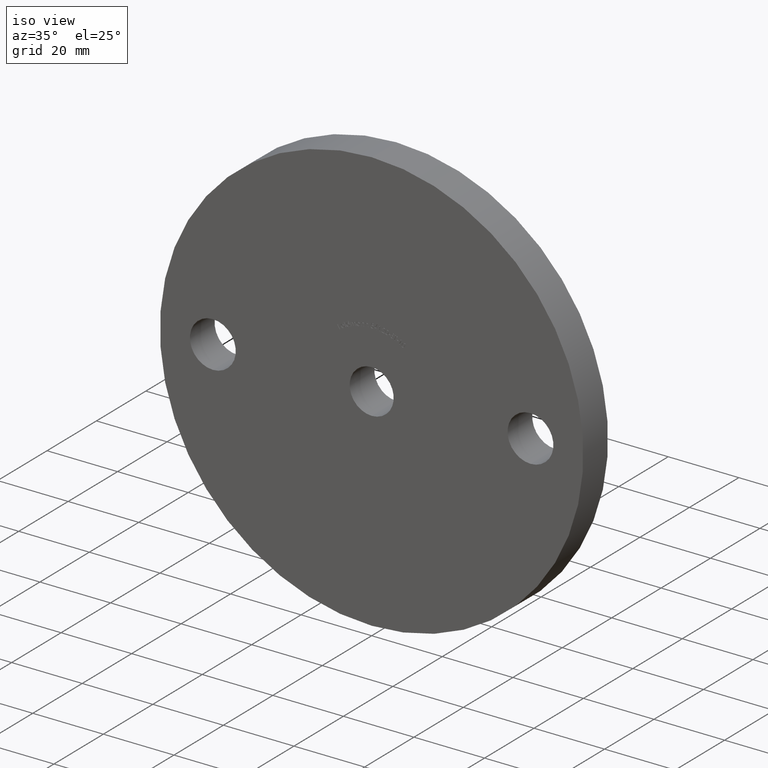
[diagram: clean part render]
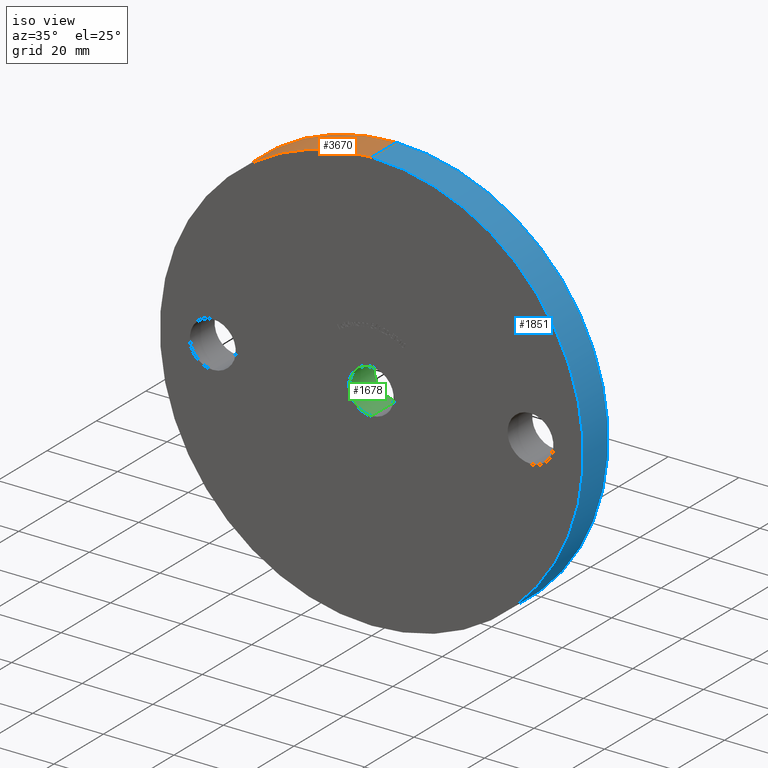
[diagram: same view with three faces highlighted in distinct colors, each labeled with its STEP entity id]
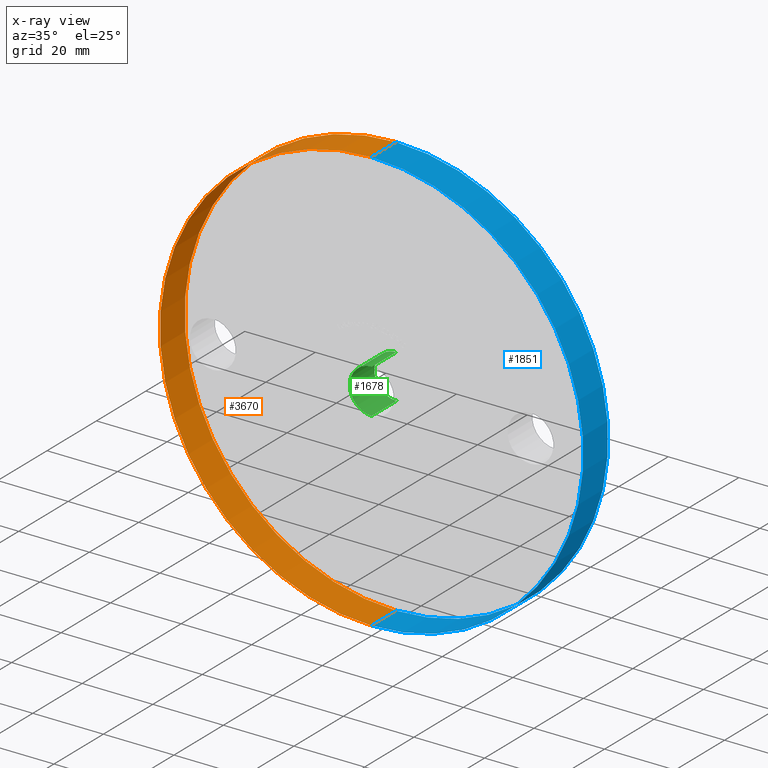
[diagram: x-ray of the same camera — body ghosted, the three highlighted faces saturated]
A machine part, iso view with three faces highlighted in distinct colors.
The next image is the same camera in x-ray (body ghosted, the three faces saturated) — at least one of them is partly hidden behind the body in this view.
Their STEP definitions:

[orange] entity #3670 — the highlighted cylindrical surface (partial cylindrical patch) has radius 60 mm, axis along (-0, -1, -0).
#126 = DIRECTION ( 'NONE',  ( 0.0000000000000000000, 0.0000000000000000000, -1.000000000000000000 ) ) ;
#240 = CARTESIAN_POINT ( 'NONE',  ( 0.0000000000000000000, 10.00000000000000000, -60.00000000000000000 ) ) ;
#1805 = ORIENTED_EDGE ( 'NONE', *, *, #5013, .T. ) ;
#2253 = VERTEX_POINT ( 'NONE', #3773 ) ;
#2984 = AXIS2_PLACEMENT_3D ( 'NONE', #9408, #3586, #10394 ) ;
#3424 = EDGE_CURVE ( 'NONE', #8776, #12142, #10878, .T. ) ;
#3496 = EDGE_CURVE ( 'NONE', #8776, #7247, #4323, .T. ) ;
#3586 = DIRECTION ( 'NONE',  ( 0.0000000000000000000, 1.000000000000000000, 0.0000000000000000000 ) ) ;
#3670 = ADVANCED_FACE ( 'NONE', ( #4309 ), #8278, .T. ) ;
#3773 = CARTESIAN_POINT ( 'NONE',  ( 7.347880794884118400E-015, 0.0000000000000000000, 60.00000000000000000 ) ) ;
#3933 = AXIS2_PLACEMENT_3D ( 'NONE', #9542, #11555, #6768 ) ;
#4059 = DIRECTION ( 'NONE',  ( -0.0000000000000000000, -1.000000000000000000, -0.0000000000000000000 ) ) ;
#4309 = FACE_OUTER_BOUND ( 'NONE', #11694, .T. ) ;
#4323 = CIRCLE ( 'NONE', #3933, 60.00000000000000000 ) ;
#5013 = EDGE_CURVE ( 'NONE', #12142, #2253, #7033, .T. ) ;
#5290 = DIRECTION ( 'NONE',  ( -0.0000000000000000000, -1.000000000000000000, -0.0000000000000000000 ) ) ;
#6247 = CARTESIAN_POINT ( 'NONE',  ( 0.0000000000000000000, 0.0000000000000000000, -60.00000000000000000 ) ) ;
#6731 = DIRECTION ( 'NONE',  ( -0.0000000000000000000, -1.000000000000000000, -0.0000000000000000000 ) ) ;
#6768 = DIRECTION ( 'NONE',  ( 0.0000000000000000000, 0.0000000000000000000, 1.000000000000000000 ) ) ;
#6902 = CARTESIAN_POINT ( 'NONE',  ( 0.0000000000000000000, 10.00000000000000000, 0.0000000000000000000 ) ) ;
#7033 = CIRCLE ( 'NONE', #2984, 60.00000000000000000 ) ;
#7247 = VERTEX_POINT ( 'NONE', #7934 ) ;
#7934 = CARTESIAN_POINT ( 'NONE',  ( 7.347880794884118400E-015, 10.00000000000000000, 60.00000000000000000 ) ) ;
#8278 = CYLINDRICAL_SURFACE ( 'NONE', #10463, 60.00000000000000000 ) ;
#8452 = ORIENTED_EDGE ( 'NONE', *, *, #3496, .F. ) ;
#8776 = VERTEX_POINT ( 'NONE', #9173 ) ;
#8929 = ORIENTED_EDGE ( 'NONE', *, *, #9392, .F. ) ;
#9173 = CARTESIAN_POINT ( 'NONE',  ( 0.0000000000000000000, 10.00000000000000000, -60.00000000000000000 ) ) ;
#9392 = EDGE_CURVE ( 'NONE', #7247, #2253, #11551, .T. ) ;
#9408 = CARTESIAN_POINT ( 'NONE',  ( 0.0000000000000000000, 0.0000000000000000000, 0.0000000000000000000 ) ) ;
#9542 = CARTESIAN_POINT ( 'NONE',  ( 0.0000000000000000000, 10.00000000000000000, 0.0000000000000000000 ) ) ;
#9807 = VECTOR ( 'NONE', #5290, 1000.000000000000000 ) ;
#10366 = ORIENTED_EDGE ( 'NONE', *, *, #3424, .T. ) ;
#10394 = DIRECTION ( 'NONE',  ( 0.0000000000000000000, 0.0000000000000000000, 1.000000000000000000 ) ) ;
#10463 = AXIS2_PLACEMENT_3D ( 'NONE', #6902, #4059, #126 ) ;
#10878 = LINE ( 'NONE', #240, #9807 ) ;
#11248 = VECTOR ( 'NONE', #6731, 1000.000000000000000 ) ;
#11551 = LINE ( 'NONE', #12580, #11248 ) ;
#11555 = DIRECTION ( 'NONE',  ( 0.0000000000000000000, 1.000000000000000000, 0.0000000000000000000 ) ) ;
#11694 = EDGE_LOOP ( 'NONE', ( #8929, #8452, #10366, #1805 ) ) ;
#12142 = VERTEX_POINT ( 'NONE', #6247 ) ;
#12580 = CARTESIAN_POINT ( 'NONE',  ( 7.347880794884118400E-015, 10.00000000000000000, 60.00000000000000000 ) ) ;

[blue] entity #1851 — the highlighted cylindrical surface (partial cylindrical patch) has radius 60 mm, axis along (-0, -1, -0).
#174 = AXIS2_PLACEMENT_3D ( 'NONE', #816, #9688, #6706 ) ;
#181 = CARTESIAN_POINT ( 'NONE',  ( 0.0000000000000000000, 10.00000000000000000, 0.0000000000000000000 ) ) ;
#199 = CIRCLE ( 'NONE', #174, 60.00000000000000000 ) ;
#240 = CARTESIAN_POINT ( 'NONE',  ( 0.0000000000000000000, 10.00000000000000000, -60.00000000000000000 ) ) ;
#491 = DIRECTION ( 'NONE',  ( 0.0000000000000000000, 1.000000000000000000, 0.0000000000000000000 ) ) ;
#766 = ORIENTED_EDGE ( 'NONE', *, *, #10922, .T. ) ;
#816 = CARTESIAN_POINT ( 'NONE',  ( 0.0000000000000000000, 10.00000000000000000, 0.0000000000000000000 ) ) ;
#1851 = ADVANCED_FACE ( 'NONE', ( #10135 ), #6466, .T. ) ;
#2253 = VERTEX_POINT ( 'NONE', #3773 ) ;
#2314 = EDGE_CURVE ( 'NONE', #7247, #8776, #199, .T. ) ;
#3070 = AXIS2_PLACEMENT_3D ( 'NONE', #181, #4120, #9301 ) ;
#3424 = EDGE_CURVE ( 'NONE', #8776, #12142, #10878, .T. ) ;
#3773 = CARTESIAN_POINT ( 'NONE',  ( 7.347880794884118400E-015, 0.0000000000000000000, 60.00000000000000000 ) ) ;
#3990 = AXIS2_PLACEMENT_3D ( 'NONE', #10346, #491, #6461 ) ;
#4120 = DIRECTION ( 'NONE',  ( -0.0000000000000000000, -1.000000000000000000, -0.0000000000000000000 ) ) ;
#4666 = CIRCLE ( 'NONE', #3990, 60.00000000000000000 ) ;
#5290 = DIRECTION ( 'NONE',  ( -0.0000000000000000000, -1.000000000000000000, -0.0000000000000000000 ) ) ;
#6247 = CARTESIAN_POINT ( 'NONE',  ( 0.0000000000000000000, 0.0000000000000000000, -60.00000000000000000 ) ) ;
#6343 = EDGE_LOOP ( 'NONE', ( #8243, #10905, #766, #11026 ) ) ;
#6461 = DIRECTION ( 'NONE',  ( 0.0000000000000000000, 0.0000000000000000000, 1.000000000000000000 ) ) ;
#6466 = CYLINDRICAL_SURFACE ( 'NONE', #3070, 60.00000000000000000 ) ;
#6706 = DIRECTION ( 'NONE',  ( 0.0000000000000000000, 0.0000000000000000000, 1.000000000000000000 ) ) ;
#6731 = DIRECTION ( 'NONE',  ( -0.0000000000000000000, -1.000000000000000000, -0.0000000000000000000 ) ) ;
#7247 = VERTEX_POINT ( 'NONE', #7934 ) ;
#7934 = CARTESIAN_POINT ( 'NONE',  ( 7.347880794884118400E-015, 10.00000000000000000, 60.00000000000000000 ) ) ;
#8243 = ORIENTED_EDGE ( 'NONE', *, *, #2314, .F. ) ;
#8776 = VERTEX_POINT ( 'NONE', #9173 ) ;
#9173 = CARTESIAN_POINT ( 'NONE',  ( 0.0000000000000000000, 10.00000000000000000, -60.00000000000000000 ) ) ;
#9301 = DIRECTION ( 'NONE',  ( 0.0000000000000000000, 0.0000000000000000000, -1.000000000000000000 ) ) ;
#9392 = EDGE_CURVE ( 'NONE', #7247, #2253, #11551, .T. ) ;
#9688 = DIRECTION ( 'NONE',  ( 0.0000000000000000000, 1.000000000000000000, 0.0000000000000000000 ) ) ;
#9807 = VECTOR ( 'NONE', #5290, 1000.000000000000000 ) ;
#10135 = FACE_OUTER_BOUND ( 'NONE', #6343, .T. ) ;
#10346 = CARTESIAN_POINT ( 'NONE',  ( 0.0000000000000000000, 0.0000000000000000000, 0.0000000000000000000 ) ) ;
#10878 = LINE ( 'NONE', #240, #9807 ) ;
#10905 = ORIENTED_EDGE ( 'NONE', *, *, #9392, .T. ) ;
#10922 = EDGE_CURVE ( 'NONE', #2253, #12142, #4666, .T. ) ;
#11026 = ORIENTED_EDGE ( 'NONE', *, *, #3424, .F. ) ;
#11248 = VECTOR ( 'NONE', #6731, 1000.000000000000000 ) ;
#11551 = LINE ( 'NONE', #12580, #11248 ) ;
#12142 = VERTEX_POINT ( 'NONE', #6247 ) ;
#12580 = CARTESIAN_POINT ( 'NONE',  ( 7.347880794884118400E-015, 10.00000000000000000, 60.00000000000000000 ) ) ;

[green] entity #1678 — the highlighted cylindrical surface (edge-blend (fillet) strip) has radius 6.25 mm, axis along (-0, 1, -0).
#64 = DIRECTION ( 'NONE',  ( -0.0000000000000000000, 1.000000000000000000, -0.0000000000000000000 ) ) ;
#157 = VERTEX_POINT ( 'NONE', #1186 ) ;
#183 = CARTESIAN_POINT ( 'NONE',  ( 0.0000000000000000000, 10.00000000000000000, 0.0000000000000000000 ) ) ;
#1186 = CARTESIAN_POINT ( 'NONE',  ( 0.0000000000000000000, 0.0000000000000000000, 6.250000000000000000 ) ) ;
#1458 = VERTEX_POINT ( 'NONE', #8144 ) ;
#1578 = CYLINDRICAL_SURFACE ( 'NONE', #4588, 6.250000000000000000 ) ;
#1678 = ADVANCED_FACE ( 'NONE', ( #11651 ), #1578, .F. ) ;
#2150 = LINE ( 'NONE', #6597, #5658 ) ;
#2348 = VECTOR ( 'NONE', #64, 1000.000000000000000 ) ;
#2706 = EDGE_LOOP ( 'NONE', ( #6013, #11544, #4212, #4429 ) ) ;
#2737 = DIRECTION ( 'NONE',  ( 0.0000000000000000000, 0.0000000000000000000, 1.000000000000000000 ) ) ;
#3510 = DIRECTION ( 'NONE',  ( -0.0000000000000000000, 1.000000000000000000, -0.0000000000000000000 ) ) ;
#3572 = LINE ( 'NONE', #4294, #2348 ) ;
#4212 = ORIENTED_EDGE ( 'NONE', *, *, #7111, .T. ) ;
#4294 = CARTESIAN_POINT ( 'NONE',  ( 0.0000000000000000000, 0.0000000000000000000, 6.250000000000000000 ) ) ;
#4429 = ORIENTED_EDGE ( 'NONE', *, *, #12031, .F. ) ;
#4588 = AXIS2_PLACEMENT_3D ( 'NONE', #7954, #8753, #9775 ) ;
#4996 = EDGE_CURVE ( 'NONE', #1458, #9989, #2150, .T. ) ;
#5354 = CARTESIAN_POINT ( 'NONE',  ( 0.0000000000000000000, 10.00000000000000000, 6.250000000000000000 ) ) ;
#5374 = CARTESIAN_POINT ( 'NONE',  ( 7.654042494670957600E-016, 10.00000000000000000, -6.250000000000000000 ) ) ;
#5658 = VECTOR ( 'NONE', #3510, 1000.000000000000000 ) ;
#6013 = ORIENTED_EDGE ( 'NONE', *, *, #11071, .F. ) ;
#6361 = AXIS2_PLACEMENT_3D ( 'NONE', #7695, #10467, #2737 ) ;
#6428 = VERTEX_POINT ( 'NONE', #5354 ) ;
#6597 = CARTESIAN_POINT ( 'NONE',  ( 7.654042494670957600E-016, 0.0000000000000000000, -6.250000000000000000 ) ) ;
#7111 = EDGE_CURVE ( 'NONE', #9989, #6428, #10364, .T. ) ;
#7553 = AXIS2_PLACEMENT_3D ( 'NONE', #183, #9962, #8842 ) ;
#7695 = CARTESIAN_POINT ( 'NONE',  ( 0.0000000000000000000, 0.0000000000000000000, 0.0000000000000000000 ) ) ;
#7954 = CARTESIAN_POINT ( 'NONE',  ( 0.0000000000000000000, 0.0000000000000000000, 0.0000000000000000000 ) ) ;
#8144 = CARTESIAN_POINT ( 'NONE',  ( 7.654042494670957600E-016, 0.0000000000000000000, -6.250000000000000000 ) ) ;
#8753 = DIRECTION ( 'NONE',  ( -0.0000000000000000000, 1.000000000000000000, -0.0000000000000000000 ) ) ;
#8842 = DIRECTION ( 'NONE',  ( 0.0000000000000000000, 0.0000000000000000000, 1.000000000000000000 ) ) ;
#9775 = DIRECTION ( 'NONE',  ( 0.0000000000000000000, 0.0000000000000000000, 1.000000000000000000 ) ) ;
#9962 = DIRECTION ( 'NONE',  ( 0.0000000000000000000, 1.000000000000000000, 0.0000000000000000000 ) ) ;
#9989 = VERTEX_POINT ( 'NONE', #5374 ) ;
#10364 = CIRCLE ( 'NONE', #7553, 6.250000000000000000 ) ;
#10467 = DIRECTION ( 'NONE',  ( 0.0000000000000000000, 1.000000000000000000, 0.0000000000000000000 ) ) ;
#11071 = EDGE_CURVE ( 'NONE', #1458, #157, #12010, .T. ) ;
#11544 = ORIENTED_EDGE ( 'NONE', *, *, #4996, .T. ) ;
#11651 = FACE_OUTER_BOUND ( 'NONE', #2706, .T. ) ;
#12010 = CIRCLE ( 'NONE', #6361, 6.250000000000000000 ) ;
#12031 = EDGE_CURVE ( 'NONE', #157, #6428, #3572, .T. ) ;